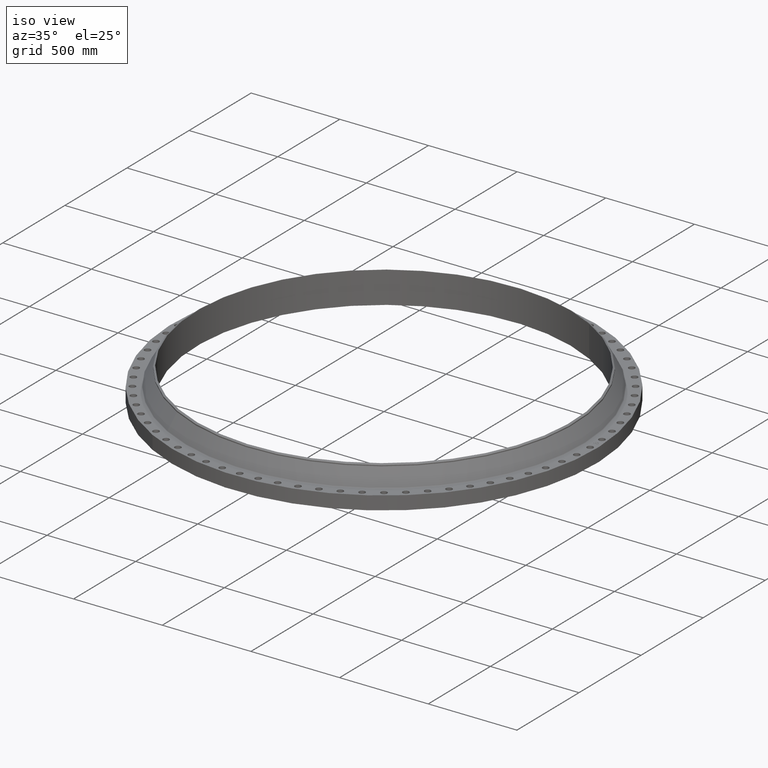
[diagram: clean part render]
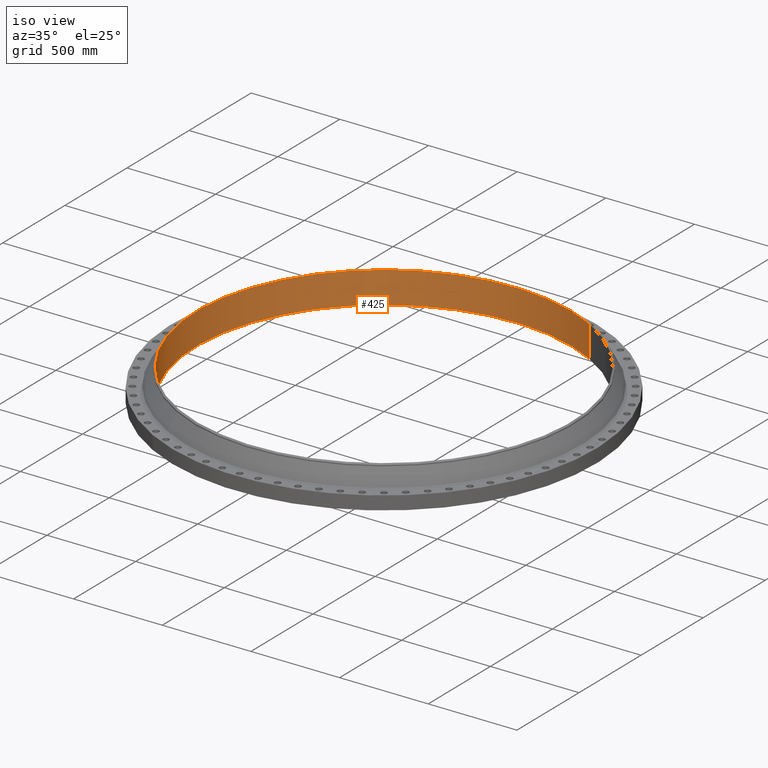
[diagram: same view with one face highlighted and labeled with its STEP entity id]
A machine part, iso view. The second image highlights one B-rep face of the part: STEP entity #425.
In plain terms, the highlighted cylindrical surface (partial cylindrical patch) has radius 1057.28 mm, axis along (0, 0, -1).
Its self-contained STEP definition (entity closure, byte-faithful):
#378=AXIS2_PLACEMENT_3D('Circle Axis2P3D',#376,#377,$) ;
#398=AXIS2_PLACEMENT_3D('Cylinder Axis2P3D',#395,#396,#397) ;
#409=AXIS2_PLACEMENT_3D('Circle Axis2P3D',#407,#408,$) ;
#376=CARTESIAN_POINT('Axis2P3D Location',(0.,1.1189649382E-015,7.00000000003)) ;
#380=CARTESIAN_POINT('Vertex',(-19.9560880445,-36.5293741388,7.00000000003)) ;
#382=CARTESIAN_POINT('Vertex',(19.9560880445,36.5293741388,7.00000000003)) ;
#395=CARTESIAN_POINT('Axis2P3D Location',(0.,0.,3.51875000001)) ;
#400=CARTESIAN_POINT('Line Origine',(-19.9560880445,-36.5293741388,3.46875000001)) ;
#404=CARTESIAN_POINT('Vertex',(-19.9560880445,-36.5293741388,-0.0625000000003)) ;
#407=CARTESIAN_POINT('Axis2P3D Location',(0.,0.,-0.0625000000003)) ;
#411=CARTESIAN_POINT('Vertex',(19.9560880445,36.5293741388,-0.0625000000003)) ;
#414=CARTESIAN_POINT('Line Origine',(19.9560880445,36.5293741388,3.46875000001)) ;
#377=DIRECTION('Axis2P3D Direction',(0.,-0.,-0.0393700787402)) ;
#396=DIRECTION('Axis2P3D Direction',(0.,0.,-0.0393700787402)) ;
#397=DIRECTION('Axis2P3D XDirection',(0.0188750212049,0.0345504945626,0.)) ;
#401=DIRECTION('Vector Direction',(0.,0.,-0.0393700787402)) ;
#408=DIRECTION('Axis2P3D Direction',(0.,0.,-0.0393700787402)) ;
#415=DIRECTION('Vector Direction',(0.,0.,-0.0393700787402)) ;
#402=VECTOR('Line Direction',#401,0.0393700787402) ;
#416=VECTOR('Line Direction',#415,0.0393700787402) ;
#420=ORIENTED_EDGE('',*,*,#406,.T.) ;
#421=ORIENTED_EDGE('',*,*,#413,.T.) ;
#422=ORIENTED_EDGE('',*,*,#418,.F.) ;
#423=ORIENTED_EDGE('',*,*,#384,.F.) ;
#425=ADVANCED_FACE('PartBody',(#424),#399,.F.) ;
#379=CIRCLE('generated circle',#378,41.6250000002) ;
#410=CIRCLE('generated circle',#409,41.6250000002) ;
#399=CYLINDRICAL_SURFACE('generated cylinder',#398,41.6250000002) ;
#384=EDGE_CURVE('',#381,#383,#379,.T.) ;
#406=EDGE_CURVE('',#381,#405,#403,.T.) ;
#413=EDGE_CURVE('',#405,#412,#410,.T.) ;
#418=EDGE_CURVE('',#383,#412,#417,.T.) ;
#419=EDGE_LOOP('',(#420,#421,#422,#423)) ;
#424=FACE_OUTER_BOUND('',#419,.T.) ;
#403=LINE('Line',#400,#402) ;
#417=LINE('Line',#414,#416) ;
#381=VERTEX_POINT('',#380) ;
#383=VERTEX_POINT('',#382) ;
#405=VERTEX_POINT('',#404) ;
#412=VERTEX_POINT('',#411) ;